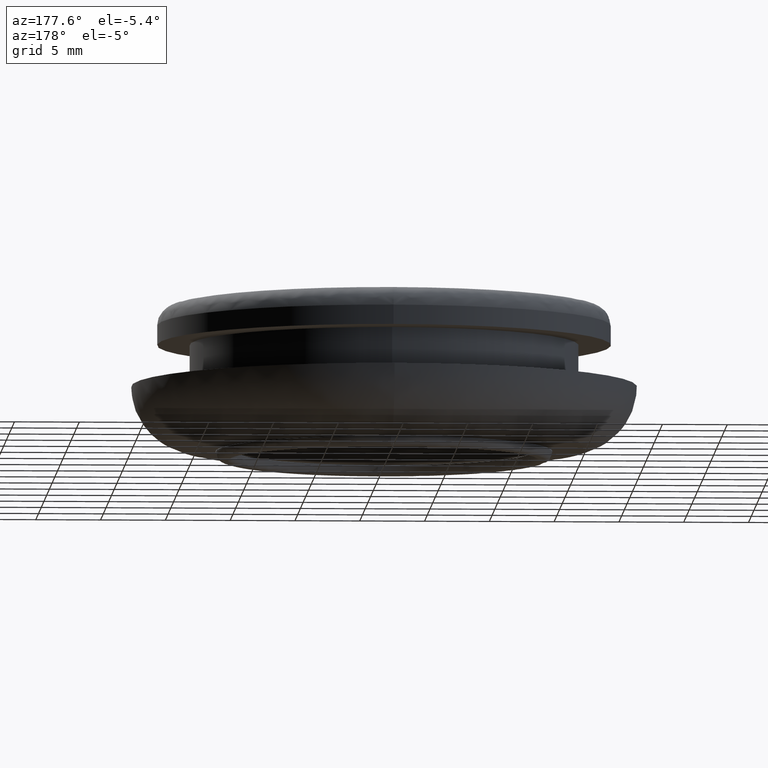
[diagram: clean part render]
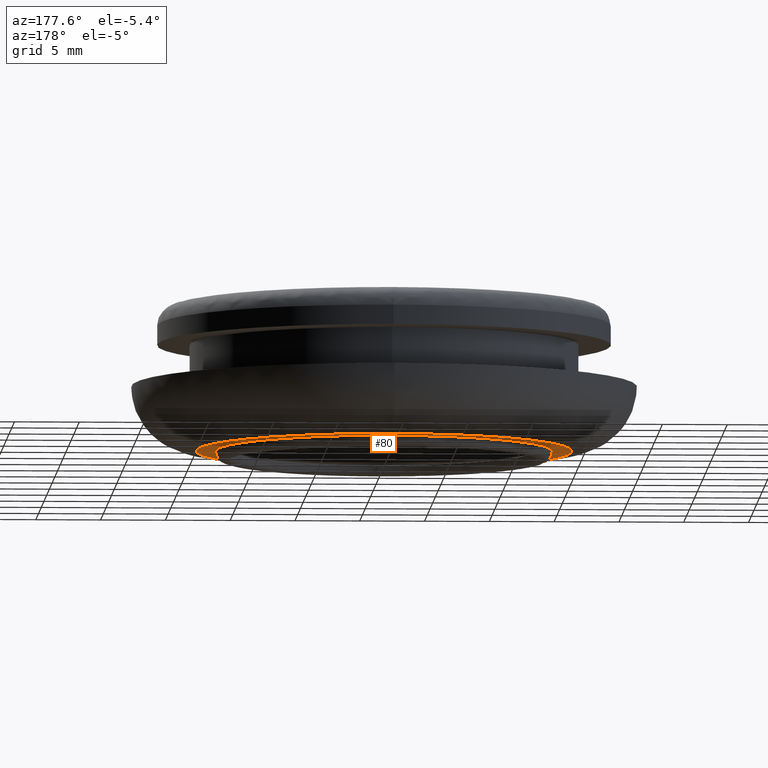
[diagram: same view with one face highlighted and labeled with its STEP entity id]
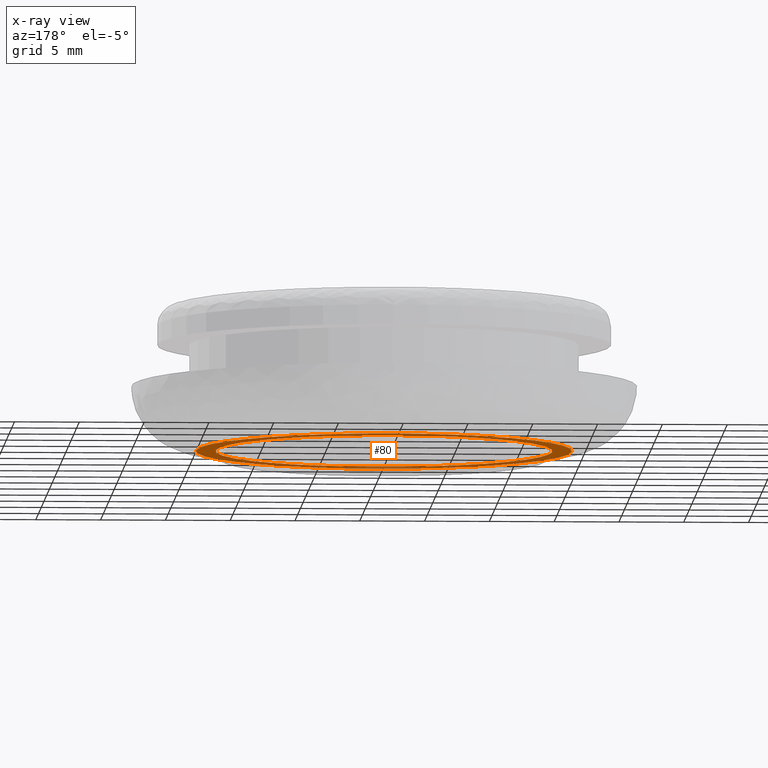
[diagram: x-ray of the same camera — body ghosted, the highlighted face saturated]
A machine part, auxiliary view. The second image highlights one B-rep face of the part: STEP entity #80.
The next image is the same camera in x-ray: the body ghosted, the highlighted face saturated — about 6% of this face is hidden behind the body in this view.
In plain terms, the highlighted planar face has unit normal (0, 0, -1).
Its self-contained STEP definition (entity closure, byte-faithful):
#80=ADVANCED_FACE('',(#151,#152),#150,.T.);
#150=PLANE('',#352);
#151=FACE_OUTER_BOUND('',#353,.T.);
#152=FACE_BOUND('',#354,.T.);
#349=CARTESIAN_POINT('',(-3.01376840517E+001,1.12000000000E+001,-3.33500000000E+001));
#350=DIRECTION('',(-0.00000000000E+000,1.00000000000E+000,0.00000000000E+000));
#351=DIRECTION('',(0.00000000000E+000,0.00000000000E+000,1.00000000000E+000));
#352=AXIS2_PLACEMENT_3D('',#349,#350,#351);
#353=EDGE_LOOP('',(#577,#578));
#354=EDGE_LOOP('',(#579,#580));
#577=ORIENTED_EDGE('',*,*,#661,.F.);
#578=ORIENTED_EDGE('',*,*,#662,.F.);
#579=ORIENTED_EDGE('',*,*,#663,.T.);
#580=ORIENTED_EDGE('',*,*,#664,.T.);
#661=EDGE_CURVE('',#799,#800,#801,.T.);
#662=EDGE_CURVE('',#800,#799,#807,.T.);
#663=EDGE_CURVE('',#813,#814,#815,.T.);
#664=EDGE_CURVE('',#814,#813,#821,.T.);
#799=VERTEX_POINT('',#1047);
#800=VERTEX_POINT('',#1048);
#801=CIRCLE('',#1052,1.45000000000E+001);
#807=CIRCLE('',#1056,1.45000000000E+001);
#813=VERTEX_POINT('',#1057);
#814=VERTEX_POINT('',#1058);
#815=(BOUNDED_CURVE() B_SPLINE_CURVE(2,(#1059,#1060,#1061,#1062,#1063),.UNSPECIFIED.,.F.,.F.) B_SPLINE_CURVE_WITH_KNOTS((3,2,3),(0.00000000000E+000,5.00000000000E-001,1.00000000000E+000),.UNSPECIFIED.) CURVE() GEOMETRIC_REPRESENTATION_ITEM() RATIONAL_B_SPLINE_CURVE((1.00000000000E+000,7.07106781187E-001,1.00000000000E+000,7.07106781187E-001,1.00000000000E+000)) REPRESENTATION_ITEM('') );
#821=(BOUNDED_CURVE() B_SPLINE_CURVE(2,(#1064,#1065,#1066,#1067,#1068),.UNSPECIFIED.,.F.,.F.) B_SPLINE_CURVE_WITH_KNOTS((3,2,3),(0.00000000000E+000,5.00000000000E-001,1.00000000000E+000),.UNSPECIFIED.) CURVE() GEOMETRIC_REPRESENTATION_ITEM() RATIONAL_B_SPLINE_CURVE((1.00000000000E+000,7.07106781187E-001,1.00000000000E+000,7.07106781187E-001,1.00000000000E+000)) REPRESENTATION_ITEM('') );
#1047=CARTESIAN_POINT('',(5.92118946467E-016,1.12000000000E+001,-1.45000000000E+001));
#1048=CARTESIAN_POINT('',(1.77567921304E-015,1.12000000000E+001,1.45000000000E+001));
#1049=CARTESIAN_POINT('',(0.00000000000E+000,1.12000000000E+001,0.00000000000E+000));
#1050=DIRECTION('',(0.00000000000E+000,-1.00000000000E+000,0.00000000000E+000));
#1051=DIRECTION('',(-0.00000000000E+000,-0.00000000000E+000,1.00000000000E+000));
#1052=AXIS2_PLACEMENT_3D('',#1049,#1050,#1051);
#1053=CARTESIAN_POINT('',(0.00000000000E+000,1.12000000000E+001,0.00000000000E+000));
#1054=DIRECTION('',(0.00000000000E+000,-1.00000000000E+000,0.00000000000E+000));
#1055=DIRECTION('',(-0.00000000000E+000,-0.00000000000E+000,1.00000000000E+000));
#1056=AXIS2_PLACEMENT_3D('',#1053,#1054,#1055);
#1057=CARTESIAN_POINT('',(0.00000000000E+000,1.11950000000E+001,-1.30000000000E+001));
#1058=CARTESIAN_POINT('',(5.92118946467E-016,1.12000000000E+001,1.30000000000E+001));
#1059=CARTESIAN_POINT('',(0.00000000000E+000,1.11950000000E+001,-1.30000000000E+001));
#1060=CARTESIAN_POINT('',(1.30000000000E+001,1.12000000000E+001,-1.30000000000E+001));
#1061=CARTESIAN_POINT('',(1.30000000000E+001,1.12000000000E+001,-2.38800867941E-015));
#1062=CARTESIAN_POINT('',(1.30000000000E+001,1.12000000000E+001,1.30000000000E+001));
#1063=CARTESIAN_POINT('',(3.18402909886E-015,1.12000000000E+001,1.30000000000E+001));
#1064=CARTESIAN_POINT('',(3.18402909886E-015,1.12000000000E+001,1.30000000000E+001));
#1065=CARTESIAN_POINT('',(-1.30000000000E+001,1.12000000000E+001,1.30000000000E+001));
#1066=CARTESIAN_POINT('',(-1.30000000000E+001,1.12000000000E+001,3.98004951831E-015));
#1067=CARTESIAN_POINT('',(-1.30000000000E+001,1.12000000000E+001,-1.30000000000E+001));
#1068=CARTESIAN_POINT('',(0.00000000000E+000,1.11950000000E+001,-1.30000000000E+001));